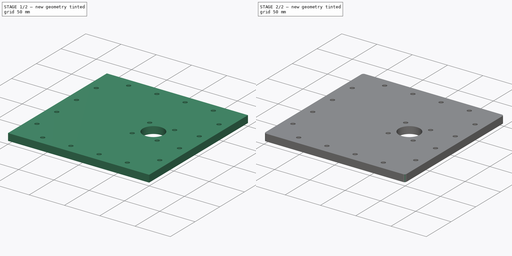
[diagram: build sequence overview — one tinted view per stage of 2, left to right]
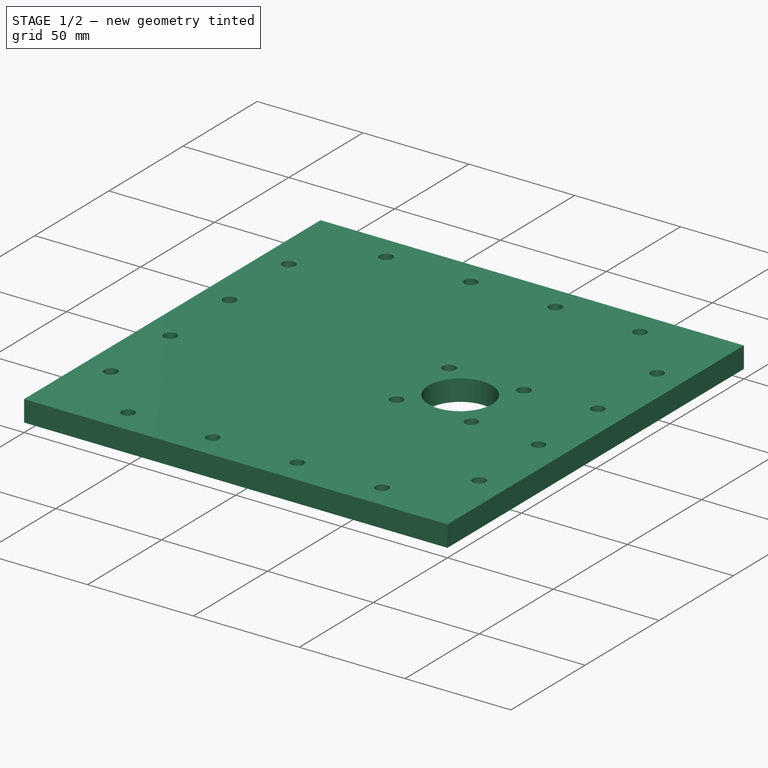
[diagram: stage 1 of 2 — iso view after this stage's code; geometry added in this stage tinted green]
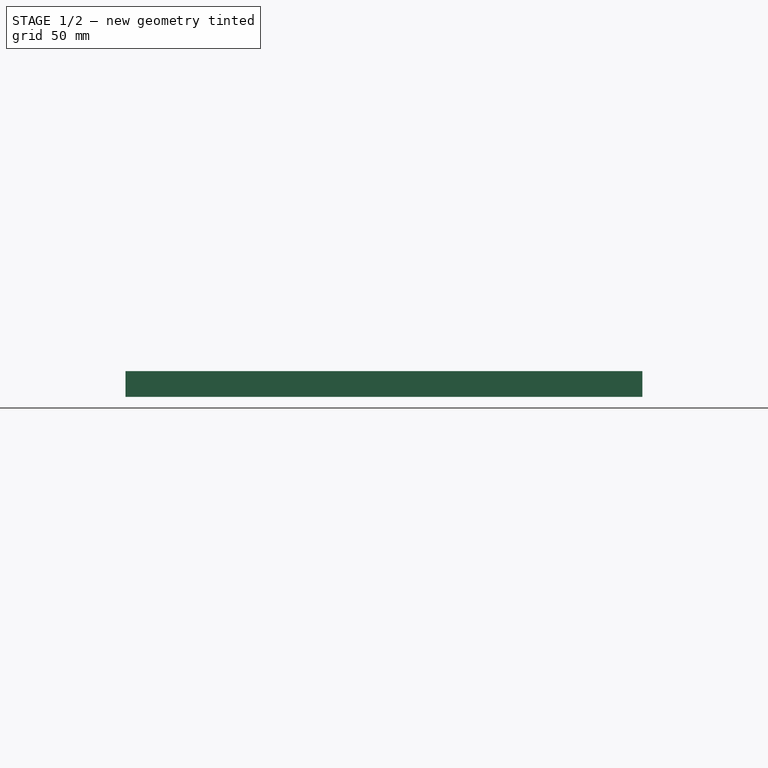
[diagram: stage 1 of 2 — front view after this stage's code; geometry added in this stage tinted green]
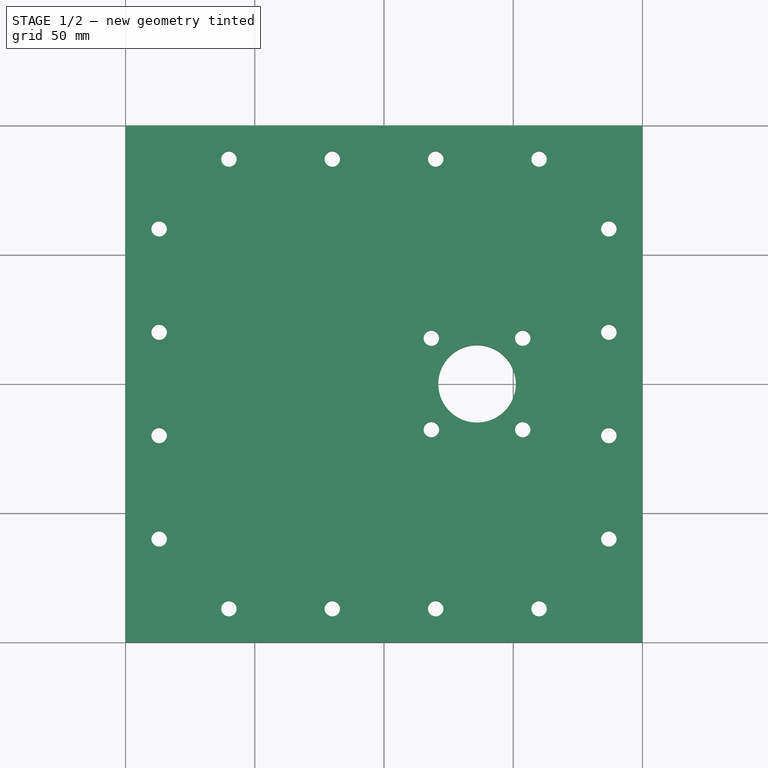
[diagram: stage 1 of 2 — top view after this stage's code; geometry added in this stage tinted green]
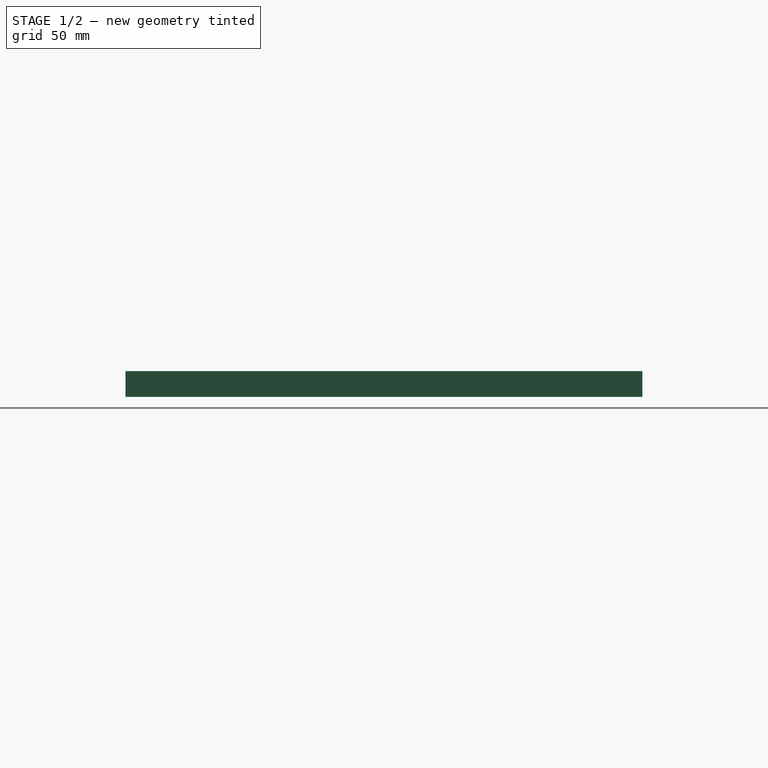
[diagram: stage 1 of 2 — right view after this stage's code; geometry added in this stage tinted green]
FCSTD DOCUMENT  (FreeCAD 0.19R24276 (Git))
Label: bldc_holder_p1_200x200x10_otv_d30_d6
License: All rights reserved
LicenseURL: http://en.wikipedia.org/wiki/All_rights_reserved
objects: Sketcher::SketchObject×1, PartDesign::Pad×1, PartDesign::Fillet×1, PartDesign::Body×1
note: 6 computed .brp shape members not serialized (recipe doc carries the construction recipe); baked Part::Feature solids carry a one-line shape summary decoded from their .brp

FEATURE [Sketcher::SketchObject] Sketch
  FullyConstrained = false
  MapMode = 5
  Support = -> [XY_Plane]
  sketch-geometry (33):
    g0: LineSegment StartX=0 StartY=0 StartZ=0 EndX=200 EndY=0 EndZ=0
    g1: LineSegment StartX=200 StartY=0 StartZ=0 EndX=200 EndY=200 EndZ=0
    g2: LineSegment StartX=200 StartY=200 StartZ=0 EndX=0 EndY=200 EndZ=0
    g3: LineSegment StartX=0 StartY=200 StartZ=0 EndX=0 EndY=0 EndZ=0
    g4: Circle CenterX=136 CenterY=100 CenterZ=0 NormalX=0 NormalY=0 NormalZ=1 AngleXU=0 Radius=15
    g5: Circle CenterX=136 CenterY=100 CenterZ=0 NormalX=0 NormalY=0 NormalZ=1 AngleXU=0 Radius=62.5
    g6: LineSegment StartX=153.678 StartY=117.678 StartZ=0 EndX=118.322 EndY=117.678 EndZ=0
    g7: LineSegment StartX=118.322 StartY=117.678 StartZ=0 EndX=118.322 EndY=82.3223 EndZ=0
    g8: LineSegment StartX=118.322 StartY=82.3223 StartZ=0 EndX=153.678 EndY=82.3223 EndZ=0
    g9: LineSegment StartX=153.678 StartY=82.3223 StartZ=0 EndX=153.678 EndY=117.678 EndZ=0
    g10: Circle CenterX=136 CenterY=100 CenterZ=0 NormalX=0 NormalY=0 NormalZ=1 AngleXU=0 Radius=25
    g11: Circle CenterX=118.322 CenterY=117.678 CenterZ=0 NormalX=0 NormalY=0 NormalZ=1 AngleXU=0 Radius=3
    g12: Circle CenterX=153.678 CenterY=117.678 CenterZ=0 NormalX=0 NormalY=0 NormalZ=1 AngleXU=0 Radius=3
    g13: Circle CenterX=118.322 CenterY=82.3223 CenterZ=0 NormalX=0 NormalY=0 NormalZ=1 AngleXU=0 Radius=3
    g14: Circle CenterX=153.678 CenterY=82.3223 CenterZ=0 NormalX=0 NormalY=0 NormalZ=1 AngleXU=0 Radius=3
    g15: Circle CenterX=40 CenterY=13 CenterZ=0 NormalX=0 NormalY=0 NormalZ=1 AngleXU=0 Radius=3
    g16: Circle CenterX=160 CenterY=13 CenterZ=0 NormalX=0 NormalY=0 NormalZ=1 AngleXU=0 Radius=3
    g17: Circle CenterX=80 CenterY=13 CenterZ=0 NormalX=0 NormalY=0 NormalZ=1 AngleXU=0 Radius=3
    g18: Circle CenterX=120 CenterY=13 CenterZ=0 NormalX=0 NormalY=0 NormalZ=1 AngleXU=0 Radius=3
    g19: LineSegment StartX=136.23 StartY=99.9588 StartZ=0 EndX=31.4327 EndY=99.9588 EndZ=0
    g20: Circle CenterX=40 CenterY=187 CenterZ=0 NormalX=0 NormalY=0 NormalZ=1 AngleXU=0 Radius=3
    g21: Circle CenterX=80 CenterY=187 CenterZ=0 NormalX=0 NormalY=0 NormalZ=1 AngleXU=0 Radius=3
    g22: Circle CenterX=120 CenterY=187 CenterZ=0 NormalX=0 NormalY=0 NormalZ=1 AngleXU=0 Radius=3
    g23: Circle CenterX=160 CenterY=187 CenterZ=0 NormalX=0 NormalY=0 NormalZ=1 AngleXU=0 Radius=3
    g24: Circle CenterX=13 CenterY=160 CenterZ=0 NormalX=0 NormalY=0 NormalZ=1 AngleXU=0 Radius=3
    g25: Circle CenterX=13 CenterY=120 CenterZ=0 NormalX=0 NormalY=0 NormalZ=1 AngleXU=0 Radius=3
    g26: Circle CenterX=13 CenterY=80 CenterZ=0 NormalX=0 NormalY=0 NormalZ=1 AngleXU=0 Radius=3
    g27: Circle CenterX=13 CenterY=40 CenterZ=0 NormalX=0 NormalY=0 NormalZ=1 AngleXU=0 Radius=3
    g28: LineSegment StartX=31.4327 StartY=99.9588 StartZ=0 EndX=31.4327 EndY=145.429 EndZ=0
    g29: Circle CenterX=187 CenterY=160 CenterZ=0 NormalX=0 NormalY=0 NormalZ=1 AngleXU=0 Radius=3
    g30: Circle CenterX=187 CenterY=120 CenterZ=0 NormalX=0 NormalY=0 NormalZ=1 AngleXU=0 Radius=3
    g31: Circle CenterX=187 CenterY=80 CenterZ=0 NormalX=0 NormalY=0 NormalZ=1 AngleXU=0 Radius=3
    g32: Circle CenterX=187 CenterY=40 CenterZ=0 NormalX=0 NormalY=0 NormalZ=1 AngleXU=0 Radius=3
  constraints (89):
    c: Coincident(g0,g1)
    c: Coincident(g1,g2)
    c: Coincident(g2,g3)
    c: Coincident(g3,g0)
    c: Horizontal(g0)
    c: Horizontal(g2)
    c: Vertical(g1)
    c: Vertical(g3)
    c: Coincident(g0,g-1)
    c: Equal(g1,g2)
    c: DistanceX(g0,g0) = 200
    c: Coincident(g5,g4)
    c: Diameter(g5) = 125
    c: DistanceX(g4,g1) = 64
    c: DistanceY(g0,g4) = 100
    c: Diameter(g4) = 30
    c: Coincident(g6,g7)
    c: Coincident(g7,g8)
    c: Coincident(g8,g9)
    c: Coincident(g9,g6)
    c: Equal(g6,g7)
    c: Equal(g6,g8)
    c: Equal(g6,g9)
    c: PointOnObject(g6,g10)
    c: PointOnObject(g7,g10)
    c: PointOnObject(g8,g10)
    c: PointOnObject(g9,g10)
    c: Coincident(g10,g4)
    c: Horizontal(g6)
    c: Diameter(g10) = 50
    c: Coincident(g11,g6)
    c: Coincident(g12,g6)
    c: Coincident(g13,g7)
    c: Coincident(g14,g8)
    c: Diameter(g11) = 6
    c: Equal(g11,g13)
    c: Equal(g11,g12)
    c: Equal(g11,g14)
    c: Horizontal(g15,g17)
    c: Horizontal(g17,g18)
    c: Horizontal(g18,g16)
    c: Equal(g15,g17)
    c: Equal(g15,g16)
    c: DistanceX(g15,g17) = 40
    c: DistanceX(g17,g18) = 40
    c: DistanceX(g18,g16) = 40
    c: DistanceX(g0,g15) = 40
    c: DistanceY(g0,g15) = 13
    c: Horizontal(g19)
    c: Diameter(g20) = 6
    c: Equal(g20,g21)
    c: Equal(g20,g22)
    c: Equal(g20,g23)
    c: Vertical(g20,g15)
    c: Vertical(g21,g17)
    c: Vertical(g22,g18)
    c: Vertical(g23,g16)
    c: Horizontal(g20,g21)
    c: Horizontal(g22,g23)
    c: DistanceY(g20,g2) = 13
    c: Horizontal(g21,g22)
    c: Vertical(g27,g26)
    c: Vertical(g26,g25)
    c: Vertical(g25,g24)
    c: Equal(g24,g25)
    c: Equal(g25,g26)
    c: Equal(g26,g27)
    c: Equal(g27,g20)
    c: DistanceY(g24,g2) = 40
    c: DistanceY(g25,g24) = 40
    c: DistanceY(g26,g25) = 40
    c: DistanceY(g27,g26) = 40
    c: DistanceX(g0,g27) = 13
    c: Coincident(g28,g19)
    c: Vertical(g28)
    c: Equal(g29,g30)
    c: Equal(g30,g31)
    c: Equal(g31,g32)
    c: Horizontal(g29,g24)
    c: Horizontal(g25,g30)
    c: Horizontal(g26,g31)
    c: Horizontal(g27,g32)
    c: Vertical(g32,g31)
    c: Vertical(g31,g30)
    c: Vertical(g30,g29)
    c: DistanceX(g32,g0) = 13
    c: Equal(g29,g23)
    c: Equal(g17,g18)
    c: Equal(g16,g27)
FEATURE [PartDesign::Pad] Pad
  Direction = (1,1,1)
  Length = 10
  Length2 = 100
  Profile = -> Sketch
  Type = 0
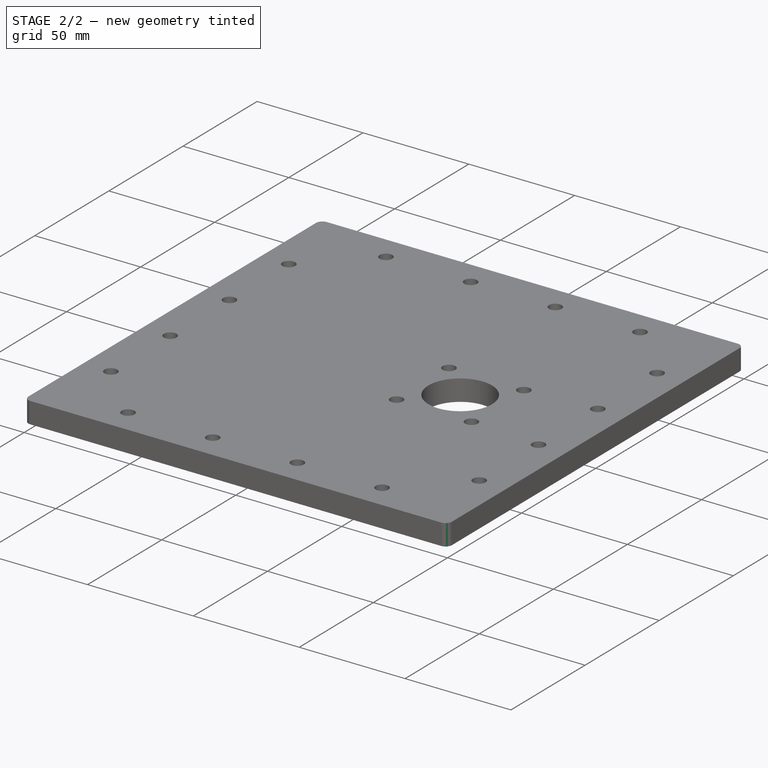
[diagram: stage 2 of 2 — iso view after this stage's code; geometry added in this stage tinted green]
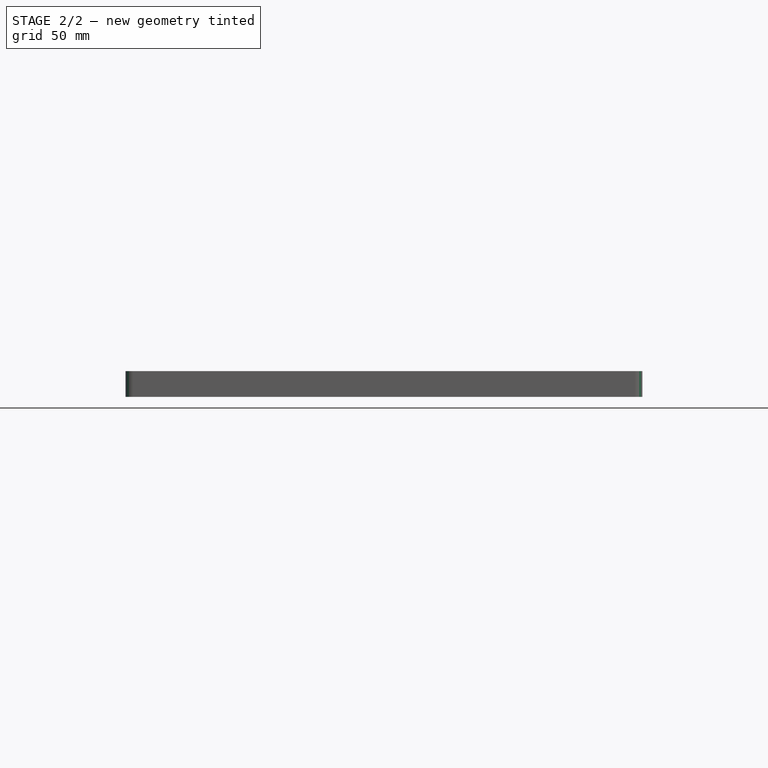
[diagram: stage 2 of 2 — front view after this stage's code; geometry added in this stage tinted green]
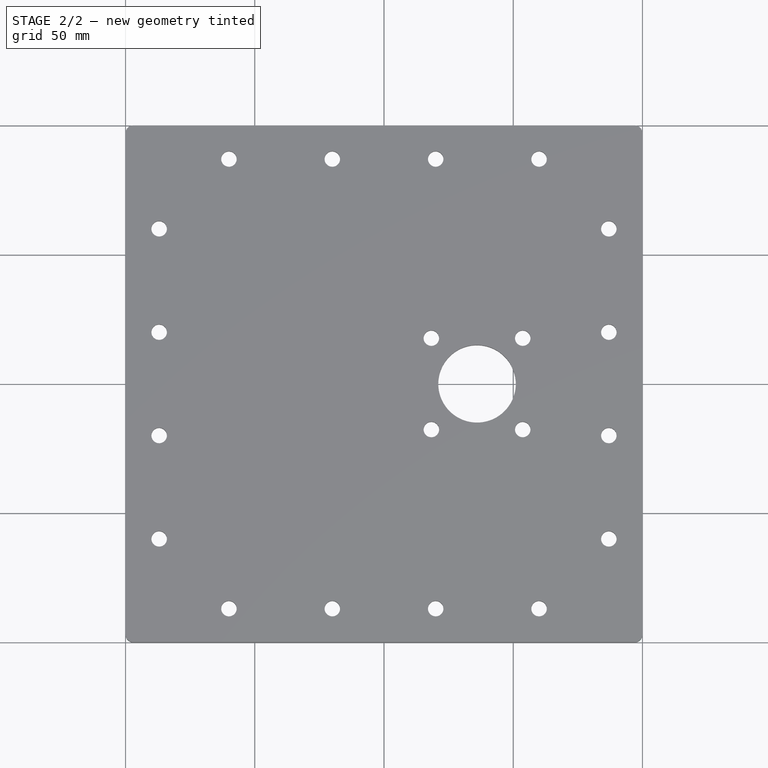
[diagram: stage 2 of 2 — top view after this stage's code; geometry added in this stage tinted green]
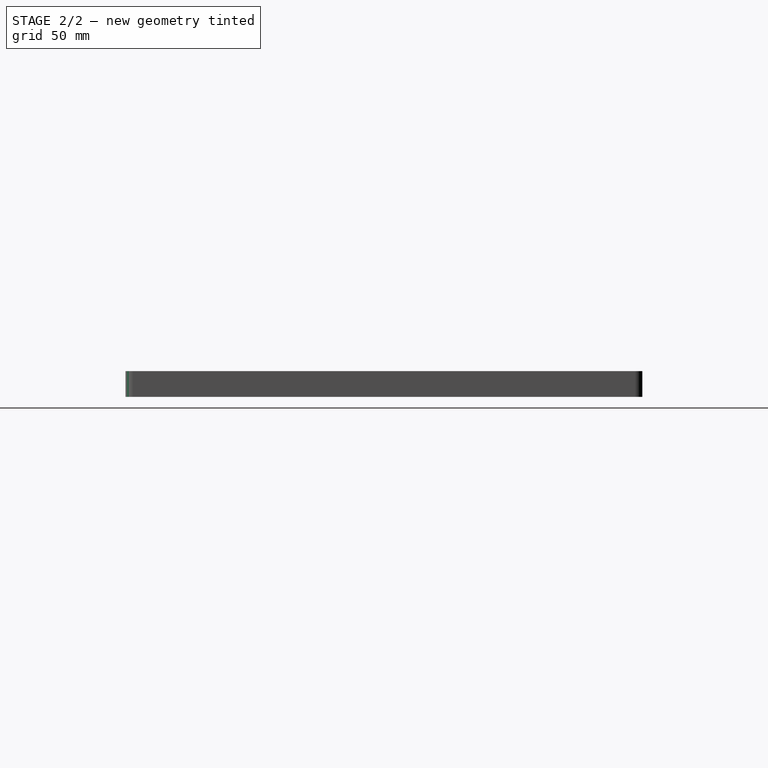
[diagram: stage 2 of 2 — right view after this stage's code; geometry added in this stage tinted green]
FEATURE [PartDesign::Fillet] Fillet
  Base = -> Pad [Edge1,Edge2,Edge8,Edge5]
  BaseFeature = -> Pad
  Radius = 3
  SupportTransform = false
FEATURE [PartDesign::Body] Body
  Group = -> [Sketch,Pad,Fillet]
  Origin = -> Origin
  Tip = -> Fillet
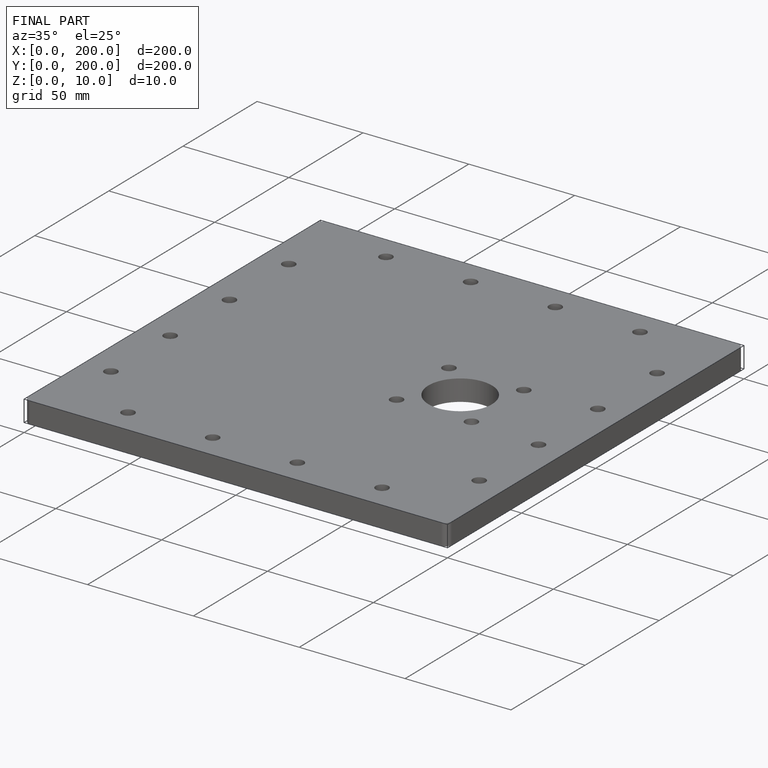
[diagram: finished part — iso view with bounding-box wireframe]
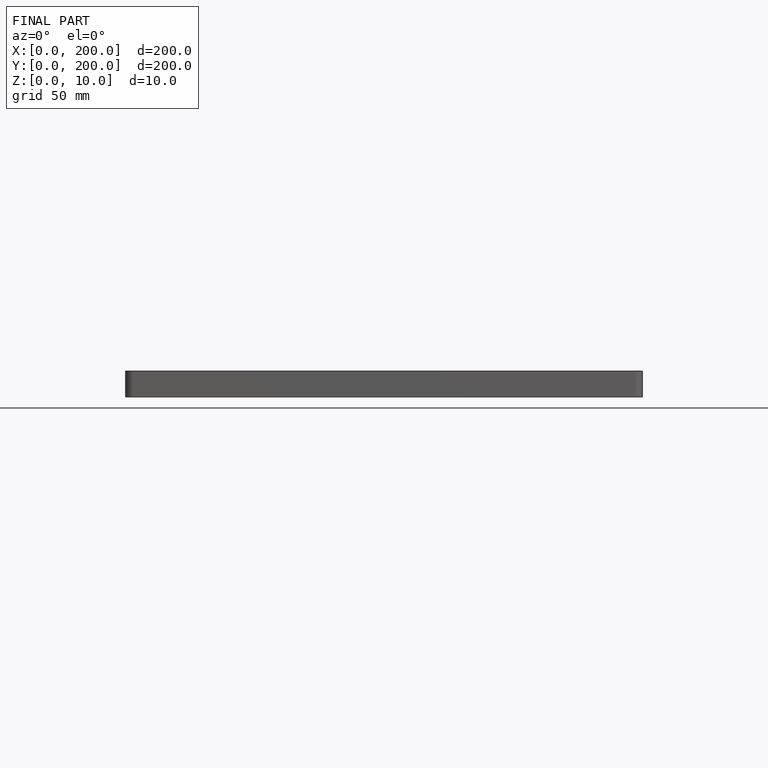
[diagram: finished part — front view with bounding-box wireframe]
